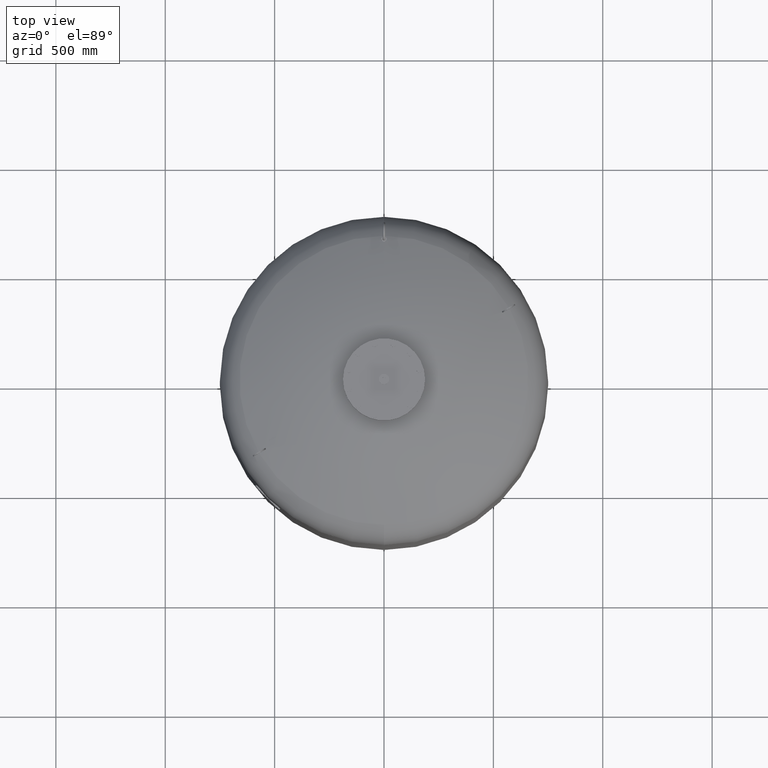
[diagram: clean part render]
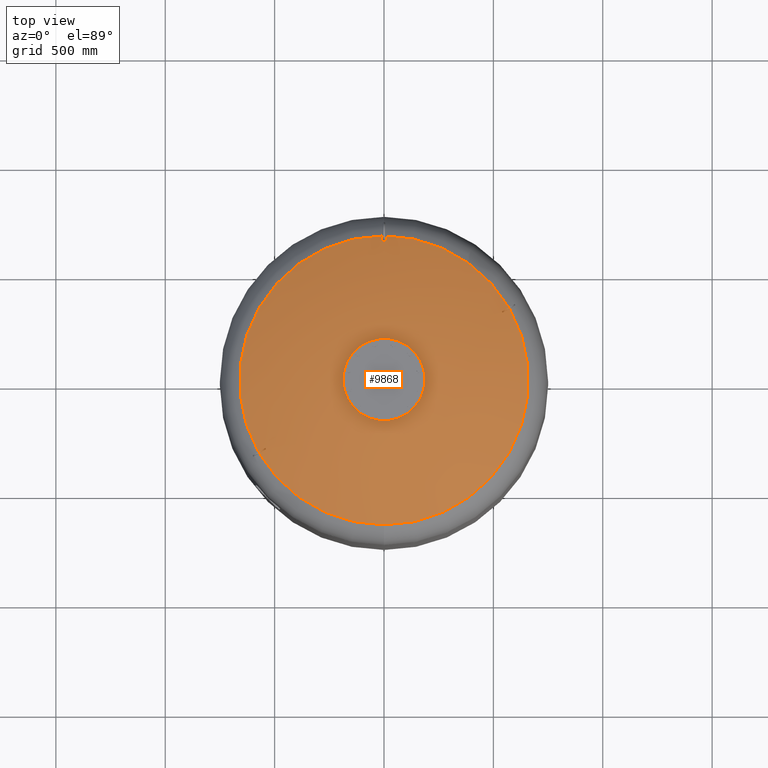
[diagram: same view with one face highlighted and labeled with its STEP entity id]
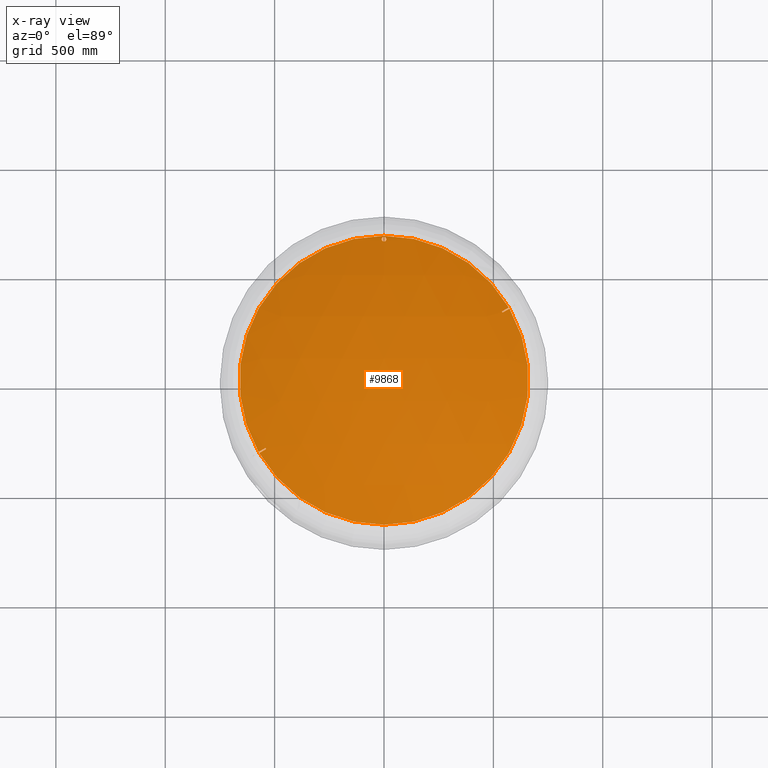
[diagram: x-ray of the same camera — body ghosted, the highlighted face saturated]
A machine part, top view. The second image highlights one B-rep face of the part: STEP entity #9868.
The next image is the same camera in x-ray: the body ghosted, the highlighted face saturated — about 0% of this face is hidden behind the body in this view.
In plain terms, the highlighted spherical surface has radius 1509 mm.
Its self-contained STEP definition (entity closure, byte-faithful):
#9132=CARTESIAN_POINT('',(2.782883E-014,-660.606666666666800,2247.716562866229200));
#9133=VERTEX_POINT('',#9132);
#9149=CARTESIAN_POINT('',(1.087271E-013,660.606666666666800,2247.716562866229200));
#9150=VERTEX_POINT('',#9149);
#9158=CARTESIAN_POINT('',(570.596255916202270,332.898003566943030,2247.716562866229200));
#9159=VERTEX_POINT('',#9158);
#9160=CARTESIAN_POINT('',(7.530601E-015,-2.797401E-014,2247.716562866229200));
#9161=DIRECTION('',(0.0,0.0,-1.0));
#9162=DIRECTION('',(1.0,0.0,0.0));
#9163=AXIS2_PLACEMENT_3D('',#9160,#9161,#9162);
#9164=CIRCLE('',#9163,660.606666666666800);
#9165=EDGE_CURVE('',#9150,#9159,#9164,.T.);
#9194=CARTESIAN_POINT('',(573.596255916202270,327.701851144236400,2247.716562866229200));
#9195=VERTEX_POINT('',#9194);
#9209=CARTESIAN_POINT('',(7.530601E-015,-2.797401E-014,2247.716562866229200));
#9210=DIRECTION('',(0.0,0.0,-1.0));
#9211=DIRECTION('',(1.0,0.0,0.0));
#9212=AXIS2_PLACEMENT_3D('',#9209,#9210,#9211);
#9213=CIRCLE('',#9212,660.606666666666800);
#9214=EDGE_CURVE('',#9195,#9133,#9213,.T.);
#9268=CARTESIAN_POINT('',(-1.897978E-015,655.650000000000090,2250.118860696149600));
#9269=VERTEX_POINT('',#9268);
#9285=CARTESIAN_POINT('',(-1.240563E-015,634.350000000000140,2260.189934778954900));
#9286=VERTEX_POINT('',#9285);
#9293=CARTESIAN_POINT('',(-1.897978E-015,655.650000000000090,2250.118860696149600));
#9294=CARTESIAN_POINT('',(0.665404330812075,655.650000000000090,2250.118860696149600));
#9295=CARTESIAN_POINT('',(1.351005238531910,655.586586472611200,2250.148956099280000));
#9296=CARTESIAN_POINT('',(2.709152380359530,655.322864024945490,2250.274102903181800));
#9297=CARTESIAN_POINT('',(3.381714256279836,655.122620744017920,2250.369122863290600));
#9298=CARTESIAN_POINT('',(4.665906970622906,654.598580857008300,2250.617749092760700));
#9299=CARTESIAN_POINT('',(5.278739801402161,654.274335051525900,2250.771567636845200));
#9300=CARTESIAN_POINT('',(6.407722563082133,653.533432843510700,2251.122965029964700));
#9301=CARTESIAN_POINT('',(6.923874650766102,653.116778685511690,2251.320541682071500));
#9302=CARTESIAN_POINT('',(7.889290439644320,652.188962456306400,2251.760401335867800));
#9303=CARTESIAN_POINT('',(8.360621428439794,651.637013011092450,2252.022009760501500));
#9304=CARTESIAN_POINT('',(9.184218306884119,650.440594312454890,2252.588884786357100));
#9305=CARTESIAN_POINT('',(9.536575262430031,649.796175836176530,2252.894126243167600));
#9306=CARTESIAN_POINT('',(10.099226215268940,648.457629366782610,2253.527921196685800));
#9307=CARTESIAN_POINT('',(10.309904511361037,647.762627273321300,2253.856887882093800));
#9308=CARTESIAN_POINT('',(10.585321999158966,646.370108996278190,2254.515766474685300));
#9309=CARTESIAN_POINT('',(10.650000000000000,645.672582847176160,2254.845682896962900));
#9310=CARTESIAN_POINT('',(10.650000000000000,644.327773783445990,2255.481531696811500));
#9311=CARTESIAN_POINT('',(10.585389715432822,643.630518005042630,2255.811092215923500));
#9312=CARTESIAN_POINT('',(10.310158197774065,642.238371078161090,2256.468852435417800));
#9313=CARTESIAN_POINT('',(10.099596713855746,641.543470358319950,2256.797056877939700));
#9314=CARTESIAN_POINT('',(9.537165322407807,640.205009979753980,2257.429000886638700));
#9315=CARTESIAN_POINT('',(9.184909130526176,639.560574217313730,2257.733154802825100));
#9316=CARTESIAN_POINT('',(8.361484811050532,638.364076526992110,2258.297699280516600));
#9317=CARTESIAN_POINT('',(7.890225855511259,637.812066143510040,2258.558066601965000));
#9318=CARTESIAN_POINT('',(6.924750618118365,636.883947430329950,2258.995733923613400));
#9319=CARTESIAN_POINT('',(6.408446699130911,636.467094997367670,2259.192258225785300));
#9320=CARTESIAN_POINT('',(5.279175018932195,635.725897994843080,2259.541632396409100));
#9321=CARTESIAN_POINT('',(4.666205770247577,635.401555709393960,2259.694482302683800));
#9322=CARTESIAN_POINT('',(3.381800145527401,634.877399673759780,2259.941469592940800));
#9323=CARTESIAN_POINT('',(2.709163715388115,634.677136677483300,2260.035819489551600));
#9324=CARTESIAN_POINT('',(1.350949437001924,634.413404190588380,2260.160067323583900));
#9325=CARTESIAN_POINT('',(0.665356121600540,634.350000000000140,2260.189934778954900));
#9326=CARTESIAN_POINT('',(-1.240563E-015,634.350000000000140,2260.189934778954900));
#9327=B_SPLINE_CURVE_WITH_KNOTS('',3,(#9293,#9294,#9295,#9296,#9297,#9298,#9299,#9300,#9301,#9302,#9303,#9304,#9305,#9306,#9307,#9308,#9309,#9310,#9311,#9312,#9313,#9314,#9315,#9316,#9317,#9318,#9319,#9320,#9321,#9322,#9323,#9324,#9325,#9326),.UNSPECIFIED.,.F.,.U.,(4,2,2,2,2,2,2,2,2,2,2,2,2,2,2,2,4),(0.0,1.996212992436229,3.992425984872458,5.988638977308687,7.984851969744916,10.216773795484329,12.448695621223742,14.680617446963154,16.912539272702567,19.143277643240921,21.374016013779276,23.604754384317630,25.835492754855984,27.831561119657607,29.827629484459230,31.823697849260853,33.819766214062476),.UNSPECIFIED.);
#9328=EDGE_CURVE('',#9269,#9286,#9327,.T.);
#9339=CARTESIAN_POINT('',(-1.240563E-015,634.350000000000140,2260.189934778954900));
#9340=CARTESIAN_POINT('',(-0.665356121600537,634.350000000000140,2260.189934778954900));
#9341=CARTESIAN_POINT('',(-1.350949437001913,634.413404190588380,2260.160067323583900));
#9342=CARTESIAN_POINT('',(-2.709163715388091,634.677136677483300,2260.035819489551600));
#9343=CARTESIAN_POINT('',(-3.381800145527372,634.877399673759780,2259.941469592940800));
#9344=CARTESIAN_POINT('',(-4.666205770247546,635.401555709393960,2259.694482302683800));
#9345=CARTESIAN_POINT('',(-5.279175018932203,635.725897994843080,2259.541632396409100));
#9346=CARTESIAN_POINT('',(-6.408446699130908,636.467094997367670,2259.192258225785700));
#9347=CARTESIAN_POINT('',(-6.924750618118371,636.883947430329950,2258.995733923613400));
#9348=CARTESIAN_POINT('',(-7.890225855511268,637.812066143510040,2258.558066601965000));
#9349=CARTESIAN_POINT('',(-8.361484811050458,638.364076526991990,2258.297699280516600));
#9350=CARTESIAN_POINT('',(-9.184909130526131,639.560574217313620,2257.733154802825100));
#9351=CARTESIAN_POINT('',(-9.537165322407807,640.205009979753980,2257.429000886638700));
#9352=CARTESIAN_POINT('',(-10.099596713855753,641.543470358319950,2256.797056877939700));
#9353=CARTESIAN_POINT('',(-10.310158197774072,642.238371078161090,2256.468852435417800));
#9354=CARTESIAN_POINT('',(-10.585389715432829,643.630518005042630,2255.811092215923500));
#9355=CARTESIAN_POINT('',(-10.650000000000004,644.327773783445990,2255.481531696811500));
#9356=CARTESIAN_POINT('',(-10.650000000000004,645.672582847176160,2254.845682896962900));
#9357=CARTESIAN_POINT('',(-10.585321999158971,646.370108996278190,2254.515766474685300));
#9358=CARTESIAN_POINT('',(-10.309904511361040,647.762627273321300,2253.856887882093800));
#9359=CARTESIAN_POINT('',(-10.099226215268944,648.457629366782610,2253.527921196685800));
#9360=CARTESIAN_POINT('',(-9.536575262430034,649.796175836176530,2252.894126243167600));
#9361=CARTESIAN_POINT('',(-9.184218306884123,650.440594312454890,2252.588884786357100));
#9362=CARTESIAN_POINT('',(-8.360621428439798,651.637013011092450,2252.022009760501500));
#9363=CARTESIAN_POINT('',(-7.889290439644324,652.188962456306400,2251.760401335867800));
#9364=CARTESIAN_POINT('',(-6.923874650766106,653.116778685511690,2251.320541682071500));
#9365=CARTESIAN_POINT('',(-6.407722563082133,653.533432843510700,2251.122965029964700));
#9366=CARTESIAN_POINT('',(-5.278739801402160,654.274335051525900,2250.771567636845200));
#9367=CARTESIAN_POINT('',(-4.665906970622908,654.598580857008300,2250.617749092760700));
#9368=CARTESIAN_POINT('',(-3.381714256279838,655.122620744017920,2250.369122863290600));
#9369=CARTESIAN_POINT('',(-2.709152380359532,655.322864024945490,2250.274102903181800));
#9370=CARTESIAN_POINT('',(-1.351005238531913,655.586586472611200,2250.148956099280000));
#9371=CARTESIAN_POINT('',(-0.665404330812078,655.650000000000090,2250.118860696149600));
#9372=CARTESIAN_POINT('',(-1.897978E-015,655.650000000000090,2250.118860696149600));
#9373=B_SPLINE_CURVE_WITH_KNOTS('',3,(#9339,#9340,#9341,#9342,#9343,#9344,#9345,#9346,#9347,#9348,#9349,#9350,#9351,#9352,#9353,#9354,#9355,#9356,#9357,#9358,#9359,#9360,#9361,#9362,#9363,#9364,#9365,#9366,#9367,#9368,#9369,#9370,#9371,#9372),.UNSPECIFIED.,.F.,.U.,(4,2,2,2,2,2,2,2,2,2,2,2,2,2,2,2,4),(33.819766214062476,35.815834578864084,37.811902943665700,39.807971308467316,41.804039673268932,44.034778043807307,46.265516414345683,48.496254784884059,50.726993155422434,52.958914981161847,55.190836806901260,57.422758632640672,59.654680458380085,61.650893450816312,63.647106443252540,65.643319435688767,67.639532428124994),.UNSPECIFIED.);
#9374=EDGE_CURVE('',#9286,#9269,#9373,.T.);
#9402=CARTESIAN_POINT('',(-570.596255916196580,-332.898003566952920,2247.716562866229700));
#9403=VERTEX_POINT('',#9402);
#9419=CARTESIAN_POINT('',(-539.004547741172360,-314.658522347942950,2264.879584180558100));
#9420=VERTEX_POINT('',#9419);
#9421=CARTESIAN_POINT('',(1.500000000005994,-2.598076211363742,891.0));
#9422=DIRECTION('',(0.499999999999994,-0.866025403784442,0.0));
#9423=DIRECTION('',(0.0,0.0,1.0));
#9424=AXIS2_PLACEMENT_3D('',#9421,#9422,#9423);
#9425=CIRCLE('',#9424,1508.997017889697400);
#9426=EDGE_CURVE('',#9420,#9403,#9425,.T.);
#9469=CARTESIAN_POINT('',(-542.004547741172470,-309.462369925236320,2264.879584180558100));
#9470=VERTEX_POINT('',#9469);
#9471=CARTESIAN_POINT('',(-195.850324208316520,-113.074237402545550,828.348481320245580));
#9472=DIRECTION('',(0.834590199910602,0.481850876581402,0.266981143436977));
#9473=DIRECTION('',(0.0,0.484652475916135,-0.874706795211036));
#9474=AXIS2_PLACEMENT_3D('',#9471,#9472,#9473);
#9475=CIRCLE('',#9474,1490.641692208577100);
#9476=EDGE_CURVE('',#9470,#9420,#9475,.T.);
#9554=CARTESIAN_POINT('',(-573.596255916196580,-327.701851144246290,2247.716562866229700));
#9555=VERTEX_POINT('',#9554);
#9578=CARTESIAN_POINT('',(-1.499999999993967,2.598076211342912,891.0));
#9579=DIRECTION('',(-0.499999999999994,0.866025403784442,0.0));
#9580=DIRECTION('',(0.0,0.0,-1.0));
#9581=AXIS2_PLACEMENT_3D('',#9578,#9579,#9580);
#9582=CIRCLE('',#9581,1508.997017889697400);
#9583=EDGE_CURVE('',#9555,#9470,#9582,.T.);
#9610=CARTESIAN_POINT('',(7.530601E-015,-2.797401E-014,2247.716562866229200));
#9611=DIRECTION('',(0.0,0.0,-1.0));
#9612=DIRECTION('',(1.0,0.0,0.0));
#9613=AXIS2_PLACEMENT_3D('',#9610,#9611,#9612);
#9614=CIRCLE('',#9613,660.606666666666800);
#9615=EDGE_CURVE('',#9133,#9403,#9614,.T.);
#9620=CARTESIAN_POINT('',(7.530601E-015,-2.797401E-014,2247.716562866229200));
#9621=DIRECTION('',(0.0,0.0,-1.0));
#9622=DIRECTION('',(1.0,0.0,0.0));
#9623=AXIS2_PLACEMENT_3D('',#9620,#9621,#9622);
#9624=CIRCLE('',#9623,660.606666666666800);
#9625=EDGE_CURVE('',#9555,#9150,#9624,.T.);
#9645=CARTESIAN_POINT('',(539.004547741178380,314.658522347932720,2264.879584180558100));
#9646=VERTEX_POINT('',#9645);
#9647=CARTESIAN_POINT('',(-1.499999999993948,2.598076211342792,891.0));
#9648=DIRECTION('',(-0.500000000000006,0.866025403784435,0.0));
#9649=DIRECTION('',(0.0,0.0,-1.0));
#9650=AXIS2_PLACEMENT_3D('',#9647,#9648,#9649);
#9651=CIRCLE('',#9650,1508.997017889697400);
#9652=EDGE_CURVE('',#9646,#9159,#9651,.T.);
#9695=CARTESIAN_POINT('',(542.004547741178380,309.462369925225970,2264.879584180558100));
#9696=VERTEX_POINT('',#9695);
#9697=CARTESIAN_POINT('',(195.850324208315390,113.074237402547780,828.348481320245360));
#9698=DIRECTION('',(-0.834590199910595,-0.481850876581413,0.266981143436977));
#9699=DIRECTION('',(0.0,0.484652475916126,0.874706795211040));
#9700=AXIS2_PLACEMENT_3D('',#9697,#9698,#9699);
#9701=CIRCLE('',#9700,1490.641692208577100);
#9702=EDGE_CURVE('',#9696,#9646,#9701,.T.);
#9833=CARTESIAN_POINT('',(1.500000000006090,-2.598076211363818,891.0));
#9834=DIRECTION('',(0.500000000000006,-0.866025403784435,0.0));
#9835=DIRECTION('',(0.0,0.0,1.0));
#9836=AXIS2_PLACEMENT_3D('',#9833,#9834,#9835);
#9837=CIRCLE('',#9836,1508.997017889697400);
#9838=EDGE_CURVE('',#9195,#9696,#9837,.T.);
#9847=CARTESIAN_POINT('',(1.607048E-013,-2.771988E-013,891.0));
#9848=DIRECTION('',(0.0,-1.0,0.0));
#9849=DIRECTION('',(-1.0,0.0,0.0));
#9850=AXIS2_PLACEMENT_3D('',#9847,#9848,#9849);
#9851=SPHERICAL_SURFACE('',#9850,1509.0);
#9852=ORIENTED_EDGE('',*,*,#9328,.T.);
#9853=ORIENTED_EDGE('',*,*,#9374,.T.);
#9854=EDGE_LOOP('',(#9852,#9853));
#9855=FACE_OUTER_BOUND('',#9854,.T.);
#9856=ORIENTED_EDGE('',*,*,#9426,.T.);
#9857=ORIENTED_EDGE('',*,*,#9615,.F.);
#9858=ORIENTED_EDGE('',*,*,#9214,.F.);
#9859=ORIENTED_EDGE('',*,*,#9838,.T.);
#9860=ORIENTED_EDGE('',*,*,#9702,.T.);
#9861=ORIENTED_EDGE('',*,*,#9652,.T.);
#9862=ORIENTED_EDGE('',*,*,#9165,.F.);
#9863=ORIENTED_EDGE('',*,*,#9625,.F.);
#9864=ORIENTED_EDGE('',*,*,#9583,.T.);
#9865=ORIENTED_EDGE('',*,*,#9476,.T.);
#9866=EDGE_LOOP('',(#9856,#9857,#9858,#9859,#9860,#9861,#9862,#9863,#9864,#9865));
#9867=FACE_BOUND('',#9866,.T.);
#9868=ADVANCED_FACE('',(#9855,#9867),#9851,.T.);